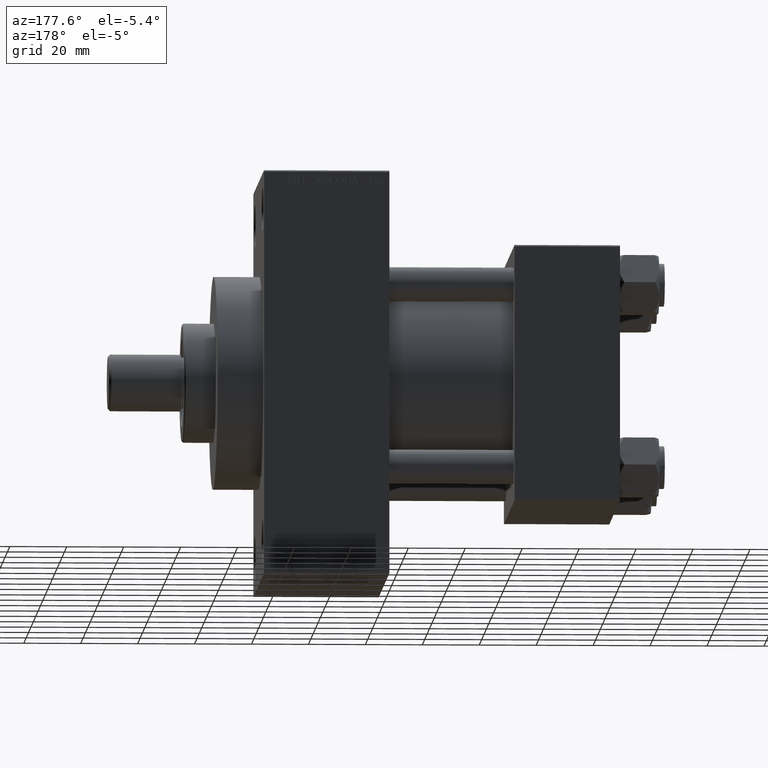
[diagram: clean part render]
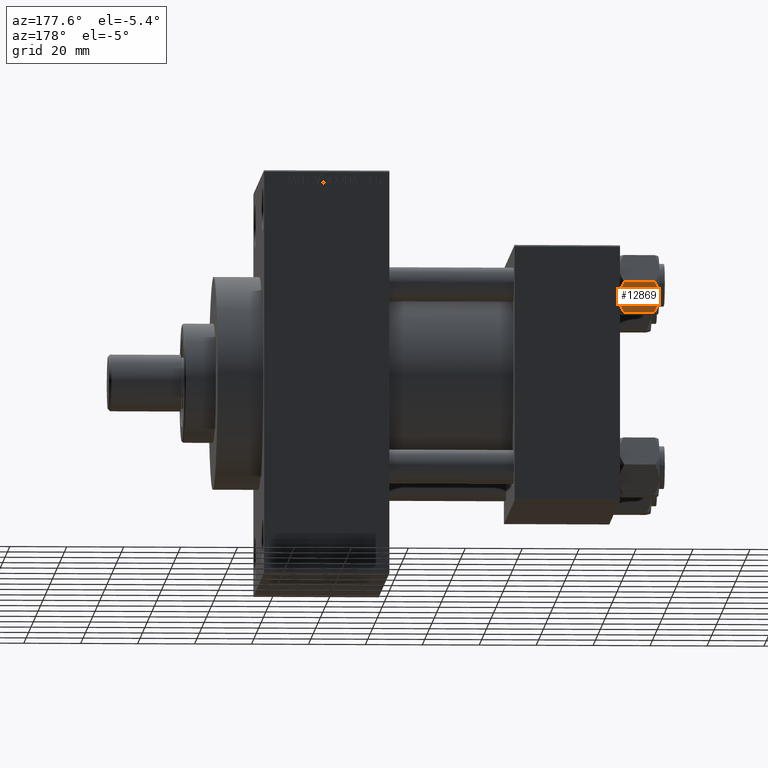
[diagram: same view with one face highlighted and labeled with its STEP entity id]
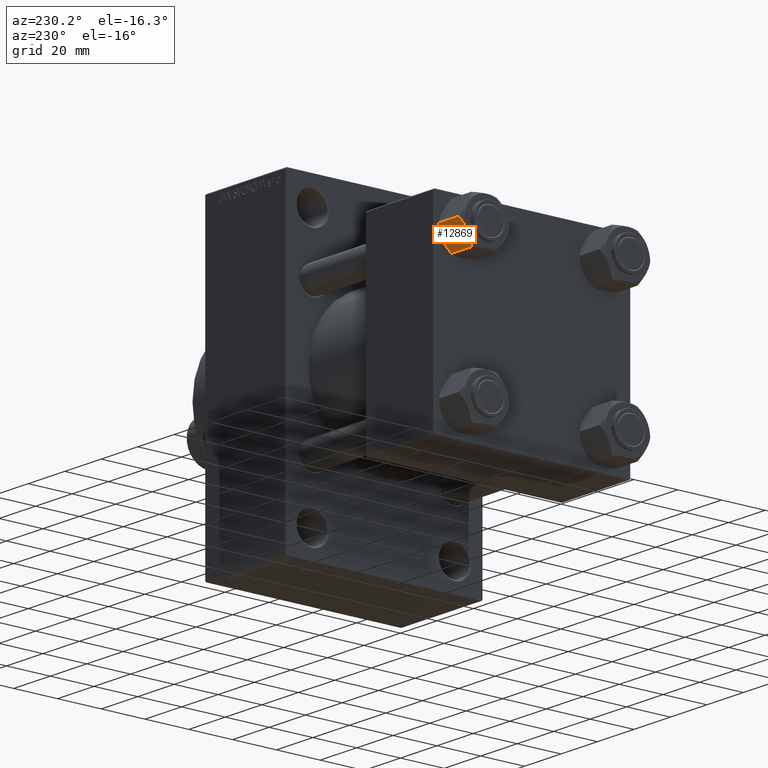
[diagram: same view with one face highlighted and labeled with its STEP entity id]
A machine part, auxiliary view. The second image highlights one B-rep face of the part: STEP entity #12869.
A second angle (auxiliary view) of the same face is appended — the face is thin or edge-on in the first view.
In plain terms, the highlighted planar face has unit normal (-0, -0.866, 0.5).
Its self-contained STEP definition (entity closure, byte-faithful):
#234 = EDGE_CURVE ( 'NONE', #16426, #18336, #47668, .T. ) ;
#1088 = ORIENTED_EDGE ( 'NONE', *, *, #21968, .T. ) ;
#2501 = VERTEX_POINT ( 'NONE', #38980 ) ;
#3421 = VECTOR ( 'NONE', #9249, 1000.000000000000000 ) ;
#4927 = EDGE_CURVE ( 'NONE', #43097, #17384, #30676, .T. ) ;
#5261 = ORIENTED_EDGE ( 'NONE', *, *, #40152, .F. ) ;
#6053 = CARTESIAN_POINT ( 'NONE',  ( 11.62000000000000099, -1.813166800014576593E-15, -14.00000000000000000 ) ) ;
#6805 = CARTESIAN_POINT ( 'NONE',  ( 11.16498164529022574, 0.7881149087337292469, -12.89823354668504862 ) ) ;
#7585 = CARTESIAN_POINT ( 'NONE',  ( 9.227666995912102266, 4.143642311704121894, -0.03994118060690670519 ) ) ;
#7686 = CARTESIAN_POINT ( 'NONE',  ( 6.265545725125286403, 9.274186850887383926, -12.89876091710046957 ) ) ;
#9192 = ORIENTED_EDGE ( 'NONE', *, *, #234, .F. ) ;
#9249 = DIRECTION ( 'NONE',  ( -0.000000000000000000, -0.000000000000000000, 1.000000000000000000 ) ) ;
#10077 = DIRECTION ( 'NONE',  ( -0.8660254037844387076, -0.4999999999999998335, 0.000000000000000000 ) ) ;
#10442 = ORIENTED_EDGE ( 'NONE', *, *, #16017, .F. ) ;
#10725 = CARTESIAN_POINT ( 'NONE',  ( 11.62000000000000099, -1.924525737834042474E-15, -1.556784808024813893 ) ) ;
#11307 = CARTESIAN_POINT ( 'NONE',  ( 5.810000000000000497, 10.06321519197518022, -12.44321519197518455 ) ) ;
#11595 = CARTESIAN_POINT ( 'NONE',  ( 8.209704053696576409, 5.906805847843727086, 3.430483436379916373E-15 ) ) ;
#11655 = CARTESIAN_POINT ( 'NONE',  ( 11.62000000000000099, -1.689012838886770227E-15, -12.44321519197518633 ) ) ;
#11775 = CARTESIAN_POINT ( 'NONE',  ( 8.715000000000005187, 5.031607595987590109, -14.00000000000000000 ) ) ;
#12060 = CARTESIAN_POINT ( 'NONE',  ( 6.265018354709773973, 9.275100283241448196, -1.101766453314953154 ) ) ;
#12864 = LINE ( 'NONE', #34771, #3421 ) ;
#12869 = ADVANCED_FACE ( 'NONE', ( #13449 ), #31501, .F. ) ;
#13449 = FACE_OUTER_BOUND ( 'NONE', #27509, .T. ) ;
#14341 = CARTESIAN_POINT ( 'NONE',  ( 8.969430103550381617, 4.590921729663312689, 3.523657060577888622E-15 ) ) ;
#14694 = ORIENTED_EDGE ( 'NONE', *, *, #4927, .F. ) ;
#15620 = CARTESIAN_POINT ( 'NONE',  ( 5.810000000000000497, 10.06321519197518022, -12.44321519197518455 ) ) ;
#16017 = EDGE_CURVE ( 'NONE', #17384, #2501, #22773, .T. ) ;
#16426 = VERTEX_POINT ( 'NONE', #15620 ) ;
#16622 = VECTOR ( 'NONE', #46538, 1000.000000000000000 ) ;
#17167 = CARTESIAN_POINT ( 'NONE',  ( 8.715000000000005187, 5.031607595987590109, -14.00000000000000000 ) ) ;
#17384 = VERTEX_POINT ( 'NONE', #22810 ) ;
#18336 = VERTEX_POINT ( 'NONE', #33597 ) ;
#18666 = CARTESIAN_POINT ( 'NONE',  ( 11.16445427487472131, 0.7890283410877956261, -1.101239082899531985 ) ) ;
#18765 = CARTESIAN_POINT ( 'NONE',  ( 6.731401448974991375, 8.467301068182917945, -13.28585617404753627 ) ) ;
#21968 = EDGE_CURVE ( 'NONE', #16426, #2501, #12864, .T. ) ;
#22477 = AXIS2_PLACEMENT_3D ( 'NONE', #42834, #10077, #35587 ) ;
#22773 = B_SPLINE_CURVE_WITH_KNOTS ( 'NONE', 3,
 ( #45069, #11595, #29890, #33732, #12060, #33974 ),
 .UNSPECIFIED., .F., .F.,
 ( 4, 2, 4 ),
 ( 0.006022845781655588107, 0.009013049135303636758, 0.01200325248895168367 ),
 .UNSPECIFIED. ) ;
#22810 = CARTESIAN_POINT ( 'NONE',  ( 8.715000000000005187, 5.031607595987590109, 0.000000000000000000 ) ) ;
#24127 = LINE ( 'NONE', #6053, #16622 ) ;
#25912 = CARTESIAN_POINT ( 'NONE',  ( 8.715000000000005187, 5.031607595987590109, 0.000000000000000000 ) ) ;
#26244 = CARTESIAN_POINT ( 'NONE',  ( 7.455303369716807182, 7.213466161761384221, -13.69973261901325934 ) ) ;
#27079 = CARTESIAN_POINT ( 'NONE',  ( 9.716999946243698005, 3.296092779912226156, -13.84547602999602134 ) ) ;
#27509 = EDGE_LOOP ( 'NONE', ( #9192, #1088, #10442, #14694, #28045, #5261 ) ) ;
#27754 = CARTESIAN_POINT ( 'NONE',  ( 11.62000000000000099, -1.924525737834042474E-15, -1.556784808024813893 ) ) ;
#28045 = ORIENTED_EDGE ( 'NONE', *, *, #29750, .F. ) ;
#28737 = CARTESIAN_POINT ( 'NONE',  ( 11.62000000000000099, -1.689012838886770227E-15, -12.44321519197518633 ) ) ;
#28801 = CARTESIAN_POINT ( 'NONE',  ( 10.69859855102501278, 1.595914123792262718, -0.7141438259524649501 ) ) ;
#29750 = EDGE_CURVE ( 'NONE', #43937, #43097, #24127, .T. ) ;
#29839 = CARTESIAN_POINT ( 'NONE',  ( 8.202333004087901003, 5.919572880271053883, -13.96005881939309567 ) ) ;
#29890 = CARTESIAN_POINT ( 'NONE',  ( 7.713000053756307928, 6.767122412062951398, -0.1545239700039825748 ) ) ;
#30676 = B_SPLINE_CURVE_WITH_KNOTS ( 'NONE', 3,
 ( #10725, #18666, #28801, #44442, #36488, #7585, #14341, #25912 ),
 .UNSPECIFIED., .F., .F.,
 ( 4, 2, 2, 4 ),
 ( 2.544312114903581015E-07, 0.003011550106433540791, 0.004517197944044564449, 0.006022845781655588107 ),
 .UNSPECIFIED. ) ;
#31501 = PLANE ( 'NONE',  #22477 ) ;
#31850 = CARTESIAN_POINT ( 'NONE',  ( 9.220295946303432189, 4.156409344131451356, -14.00000000000000178 ) ) ;
#33597 = CARTESIAN_POINT ( 'NONE',  ( 8.715000000000005187, 5.031607595987590109, -14.00000000000000000 ) ) ;
#33732 = CARTESIAN_POINT ( 'NONE',  ( 6.733375043383499126, 8.463882702393844326, -0.7114554706434494946 ) ) ;
#33974 = CARTESIAN_POINT ( 'NONE',  ( 5.810000000000000497, 10.06321519197518022, -1.556784808024815892 ) ) ;
#34771 = CARTESIAN_POINT ( 'NONE',  ( 5.810000000000000497, 10.06321519197518022, -14.00000000000000000 ) ) ;
#35587 = DIRECTION ( 'NONE',  ( 0.4999999999999998335, -0.8660254037844387076, 0.000000000000000000 ) ) ;
#35702 = CARTESIAN_POINT ( 'NONE',  ( 10.69662495661650503, 1.599332489581333672, -13.28854452935655139 ) ) ;
#36488 = CARTESIAN_POINT ( 'NONE',  ( 9.729165168613654657, 3.275021996682081493, -0.1903979688073405840 ) ) ;
#38980 = CARTESIAN_POINT ( 'NONE',  ( 5.810000000000000497, 10.06321519197518022, -1.556784808024815892 ) ) ;
#40152 = EDGE_CURVE ( 'NONE', #18336, #43937, #41890, .T. ) ;
#41890 = B_SPLINE_CURVE_WITH_KNOTS ( 'NONE', 3,
 ( #17167, #31850, #27079, #35702, #6805, #28737 ),
 .UNSPECIFIED., .F., .F.,
 ( 4, 2, 4 ),
 ( 0.006022845781655592444, 0.009013049135303636758, 0.01200325248895168194 ),
 .UNSPECIFIED. ) ;
#42834 = CARTESIAN_POINT ( 'NONE',  ( 5.810000000000000497, 10.06321519197518022, -14.00000000000000000 ) ) ;
#43097 = VERTEX_POINT ( 'NONE', #27754 ) ;
#43937 = VERTEX_POINT ( 'NONE', #11655 ) ;
#44442 = CARTESIAN_POINT ( 'NONE',  ( 9.974696630283190757, 2.849749030213792000, -0.3002673809867367205 ) ) ;
#44540 = CARTESIAN_POINT ( 'NONE',  ( 8.460569896449618099, 5.472293462311861312, -14.00000000000000000 ) ) ;
#45015 = CARTESIAN_POINT ( 'NONE',  ( 7.700834831386345058, 6.788193195293094284, -13.80960203119265906 ) ) ;
#45069 = CARTESIAN_POINT ( 'NONE',  ( 8.715000000000005187, 5.031607595987590109, 0.000000000000000000 ) ) ;
#46538 = DIRECTION ( 'NONE',  ( -0.000000000000000000, -0.000000000000000000, 1.000000000000000000 ) ) ;
#47668 = B_SPLINE_CURVE_WITH_KNOTS ( 'NONE', 3,
 ( #11307, #7686, #18765, #26244, #45015, #29839, #44540, #11775 ),
 .UNSPECIFIED., .F., .F.,
 ( 4, 2, 2, 4 ),
 ( 2.544312114902182352E-07, 0.003011550106433542526, 0.004517197944044567919, 0.006022845781655592444 ),
 .UNSPECIFIED. ) ;